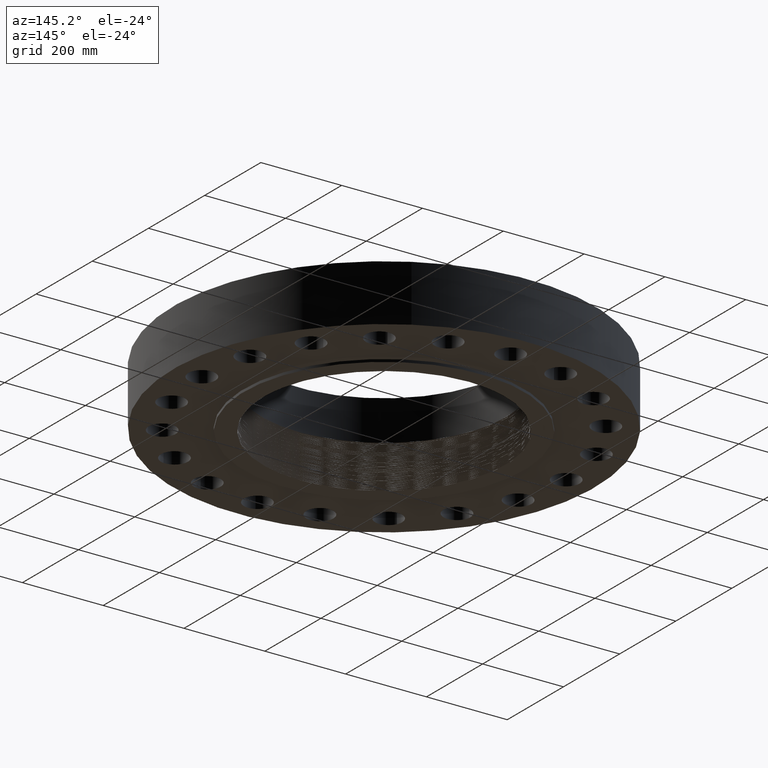
[diagram: clean part render]
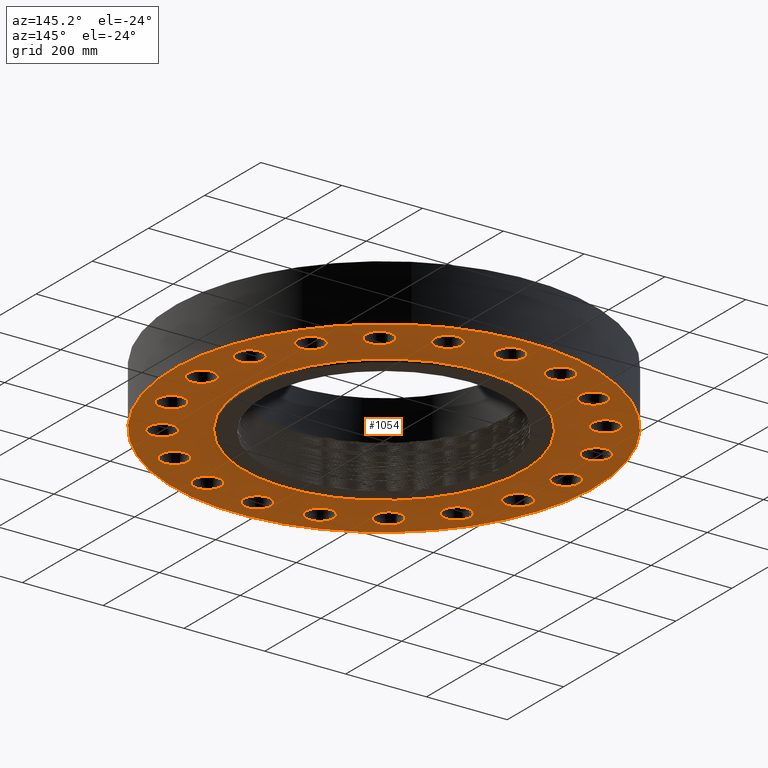
[diagram: same view with one face highlighted and labeled with its STEP entity id]
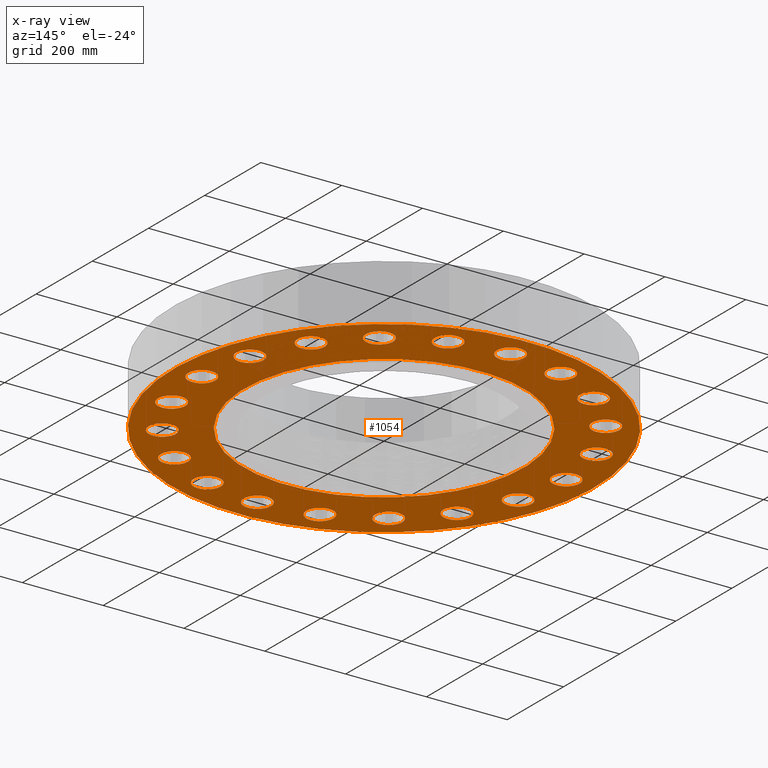
[diagram: x-ray of the same camera — body ghosted, the highlighted face saturated]
A machine part, auxiliary view. The second image highlights one B-rep face of the part: STEP entity #1054.
The next image is the same camera in x-ray: the body ghosted, the highlighted face saturated — about 0% of this face is hidden behind the body in this view.
In plain terms, the highlighted planar face has unit normal (0, 0, -1).
Its self-contained STEP definition (entity closure, byte-faithful):
#411=AXIS2_PLACEMENT_3D('Circle Axis2P3D',#409,#410,$) ;
#437=AXIS2_PLACEMENT_3D('Circle Axis2P3D',#435,#436,$) ;
#459=AXIS2_PLACEMENT_3D('Circle Axis2P3D',#457,#458,$) ;
#494=AXIS2_PLACEMENT_3D('Circle Axis2P3D',#492,#493,$) ;
#666=AXIS2_PLACEMENT_3D('Circle Axis2P3D',#664,#665,$) ;
#685=AXIS2_PLACEMENT_3D('Circle Axis2P3D',#683,#684,$) ;
#698=AXIS2_PLACEMENT_3D('Plane Axis2P3D',#695,#696,#697) ;
#714=AXIS2_PLACEMENT_3D('Circle Axis2P3D',#712,#713,$) ;
#723=AXIS2_PLACEMENT_3D('Circle Axis2P3D',#721,#722,$) ;
#732=AXIS2_PLACEMENT_3D('Circle Axis2P3D',#730,#731,$) ;
#741=AXIS2_PLACEMENT_3D('Circle Axis2P3D',#739,#740,$) ;
#750=AXIS2_PLACEMENT_3D('Circle Axis2P3D',#748,#749,$) ;
#759=AXIS2_PLACEMENT_3D('Circle Axis2P3D',#757,#758,$) ;
#768=AXIS2_PLACEMENT_3D('Circle Axis2P3D',#766,#767,$) ;
#777=AXIS2_PLACEMENT_3D('Circle Axis2P3D',#775,#776,$) ;
#786=AXIS2_PLACEMENT_3D('Circle Axis2P3D',#784,#785,$) ;
#795=AXIS2_PLACEMENT_3D('Circle Axis2P3D',#793,#794,$) ;
#804=AXIS2_PLACEMENT_3D('Circle Axis2P3D',#802,#803,$) ;
#813=AXIS2_PLACEMENT_3D('Circle Axis2P3D',#811,#812,$) ;
#822=AXIS2_PLACEMENT_3D('Circle Axis2P3D',#820,#821,$) ;
#831=AXIS2_PLACEMENT_3D('Circle Axis2P3D',#829,#830,$) ;
#840=AXIS2_PLACEMENT_3D('Circle Axis2P3D',#838,#839,$) ;
#849=AXIS2_PLACEMENT_3D('Circle Axis2P3D',#847,#848,$) ;
#858=AXIS2_PLACEMENT_3D('Circle Axis2P3D',#856,#857,$) ;
#867=AXIS2_PLACEMENT_3D('Circle Axis2P3D',#865,#866,$) ;
#876=AXIS2_PLACEMENT_3D('Circle Axis2P3D',#874,#875,$) ;
#885=AXIS2_PLACEMENT_3D('Circle Axis2P3D',#883,#884,$) ;
#894=AXIS2_PLACEMENT_3D('Circle Axis2P3D',#892,#893,$) ;
#903=AXIS2_PLACEMENT_3D('Circle Axis2P3D',#901,#902,$) ;
#912=AXIS2_PLACEMENT_3D('Circle Axis2P3D',#910,#911,$) ;
#921=AXIS2_PLACEMENT_3D('Circle Axis2P3D',#919,#920,$) ;
#930=AXIS2_PLACEMENT_3D('Circle Axis2P3D',#928,#929,$) ;
#939=AXIS2_PLACEMENT_3D('Circle Axis2P3D',#937,#938,$) ;
#948=AXIS2_PLACEMENT_3D('Circle Axis2P3D',#946,#947,$) ;
#957=AXIS2_PLACEMENT_3D('Circle Axis2P3D',#955,#956,$) ;
#966=AXIS2_PLACEMENT_3D('Circle Axis2P3D',#964,#965,$) ;
#975=AXIS2_PLACEMENT_3D('Circle Axis2P3D',#973,#974,$) ;
#984=AXIS2_PLACEMENT_3D('Circle Axis2P3D',#982,#983,$) ;
#993=AXIS2_PLACEMENT_3D('Circle Axis2P3D',#991,#992,$) ;
#1002=AXIS2_PLACEMENT_3D('Circle Axis2P3D',#1000,#1001,$) ;
#1011=AXIS2_PLACEMENT_3D('Circle Axis2P3D',#1009,#1010,$) ;
#1020=AXIS2_PLACEMENT_3D('Circle Axis2P3D',#1018,#1019,$) ;
#1029=AXIS2_PLACEMENT_3D('Circle Axis2P3D',#1027,#1028,$) ;
#1038=AXIS2_PLACEMENT_3D('Circle Axis2P3D',#1036,#1037,$) ;
#1047=AXIS2_PLACEMENT_3D('Circle Axis2P3D',#1045,#1046,$) ;
#404=CARTESIAN_POINT('Vertex',(16.5959789312,0.630444583267,0.)) ;
#409=CARTESIAN_POINT('Axis2P3D Location',(17.7500000001,0.,0.)) ;
#413=CARTESIAN_POINT('Vertex',(18.904021069,-0.630444583267,0.)) ;
#435=CARTESIAN_POINT('Axis2P3D Location',(17.7500000001,0.,0.)) ;
#457=CARTESIAN_POINT('Axis2P3D Location',(0.,0.,2.23792987641E-015)) ;
#461=CARTESIAN_POINT('Vertex',(-9.82822354143,-17.9904425188,2.23792987641E-015)) ;
#463=CARTESIAN_POINT('Vertex',(9.82822354143,17.9904425188,2.23792987641E-015)) ;
#492=CARTESIAN_POINT('Axis2P3D Location',(0.,0.,2.23792987641E-015)) ;
#661=CARTESIAN_POINT('Vertex',(-6.53217296351,-11.9570624058,1.1189649382E-015)) ;
#664=CARTESIAN_POINT('Axis2P3D Location',(0.,0.,1.67844740731E-015)) ;
#668=CARTESIAN_POINT('Vertex',(6.53217296351,11.9570624058,1.1189649382E-015)) ;
#683=CARTESIAN_POINT('Axis2P3D Location',(0.,0.,1.67844740731E-015)) ;
#695=CARTESIAN_POINT('Axis2P3D Location',(0.,13.6250000001,0.)) ;
#712=CARTESIAN_POINT('Axis2P3D Location',(16.8812531643,-5.48505165018,0.)) ;
#716=CARTESIAN_POINT('Vertex',(15.978531997,-4.52885109894,0.)) ;
#718=CARTESIAN_POINT('Vertex',(17.7839743316,-6.44125220141,0.)) ;
#721=CARTESIAN_POINT('Axis2P3D Location',(16.8812531643,-5.48505165018,0.)) ;
#730=CARTESIAN_POINT('Axis2P3D Location',(14.3600516502,-10.4331882282,0.)) ;
#734=CARTESIAN_POINT('Vertex',(13.796995022,-9.24483128123,0.)) ;
#736=CARTESIAN_POINT('Vertex',(14.9231082784,-11.6215451752,-4.47585975282E-015)) ;
#739=CARTESIAN_POINT('Axis2P3D Location',(14.3600516502,-10.4331882282,0.)) ;
#748=CARTESIAN_POINT('Axis2P3D Location',(10.4331882282,-14.3600516502,0.)) ;
#752=CARTESIAN_POINT('Vertex',(10.264912045,-13.0558629652,0.)) ;
#754=CARTESIAN_POINT('Vertex',(10.6014644115,-15.6642403352,0.)) ;
#757=CARTESIAN_POINT('Axis2P3D Location',(10.4331882282,-14.3600516502,0.)) ;
#766=CARTESIAN_POINT('Axis2P3D Location',(5.48505165018,-16.8812531643,0.)) ;
#770=CARTESIAN_POINT('Vertex',(5.7280279571,-15.5888958166,0.)) ;
#772=CARTESIAN_POINT('Vertex',(5.24207534325,-18.1736105121,0.)) ;
#775=CARTESIAN_POINT('Axis2P3D Location',(5.48505165018,-16.8812531643,0.)) ;
#784=CARTESIAN_POINT('Axis2P3D Location',(3.91637728372E-015,-17.7500000001,0.)) ;
#788=CARTESIAN_POINT('Vertex',(0.630444583267,-16.5959789312,0.)) ;
#790=CARTESIAN_POINT('Vertex',(-0.630444583267,-18.904021069,0.)) ;
#793=CARTESIAN_POINT('Axis2P3D Location',(9.79094320929E-016,-17.7500000001,0.)) ;
#802=CARTESIAN_POINT('Axis2P3D Location',(-5.48505165018,-16.8812531643,0.)) ;
#806=CARTESIAN_POINT('Vertex',(-4.52885109894,-15.978531997,0.)) ;
#808=CARTESIAN_POINT('Vertex',(-6.44125220141,-17.7839743316,0.)) ;
#811=CARTESIAN_POINT('Axis2P3D Location',(-5.48505165018,-16.8812531643,0.)) ;
#820=CARTESIAN_POINT('Axis2P3D Location',(-10.4331882282,-14.3600516502,0.)) ;
#824=CARTESIAN_POINT('Vertex',(-9.24483128123,-13.796995022,0.)) ;
#826=CARTESIAN_POINT('Vertex',(-11.6215451752,-14.9231082784,0.)) ;
#829=CARTESIAN_POINT('Axis2P3D Location',(-10.4331882282,-14.3600516502,0.)) ;
#838=CARTESIAN_POINT('Axis2P3D Location',(-14.3600516502,-10.4331882282,0.)) ;
#842=CARTESIAN_POINT('Vertex',(-13.0558629652,-10.264912045,0.)) ;
#844=CARTESIAN_POINT('Vertex',(-15.6642403352,-10.6014644115,0.)) ;
#847=CARTESIAN_POINT('Axis2P3D Location',(-14.3600516502,-10.4331882282,0.)) ;
#856=CARTESIAN_POINT('Axis2P3D Location',(-16.8812531643,-5.48505165018,0.)) ;
#860=CARTESIAN_POINT('Vertex',(-15.5888958166,-5.7280279571,0.)) ;
#862=CARTESIAN_POINT('Vertex',(-18.1736105121,-5.24207534325,0.)) ;
#865=CARTESIAN_POINT('Axis2P3D Location',(-16.8812531643,-5.48505165018,0.)) ;
#874=CARTESIAN_POINT('Axis2P3D Location',(-17.7500000001,-1.1189649382E-014,0.)) ;
#878=CARTESIAN_POINT('Vertex',(-16.5959789312,-0.630444583267,0.)) ;
#880=CARTESIAN_POINT('Vertex',(-18.904021069,0.630444583267,0.)) ;
#883=CARTESIAN_POINT('Axis2P3D Location',(-17.7500000001,-8.95171950564E-015,0.)) ;
#892=CARTESIAN_POINT('Axis2P3D Location',(-16.8812531643,5.48505165018,0.)) ;
#896=CARTESIAN_POINT('Vertex',(-15.978531997,4.52885109894,0.)) ;
#898=CARTESIAN_POINT('Vertex',(-17.7839743316,6.44125220141,0.)) ;
#901=CARTESIAN_POINT('Axis2P3D Location',(-16.8812531643,5.48505165018,0.)) ;
#910=CARTESIAN_POINT('Axis2P3D Location',(-14.3600516502,10.4331882282,0.)) ;
#914=CARTESIAN_POINT('Vertex',(-13.796995022,9.24483128123,0.)) ;
#916=CARTESIAN_POINT('Vertex',(-14.9231082784,11.6215451752,-4.47585975282E-015)) ;
#919=CARTESIAN_POINT('Axis2P3D Location',(-14.3600516502,10.4331882282,0.)) ;
#928=CARTESIAN_POINT('Axis2P3D Location',(-10.4331882282,14.3600516502,0.)) ;
#932=CARTESIAN_POINT('Vertex',(-10.264912045,13.0558629652,0.)) ;
#934=CARTESIAN_POINT('Vertex',(-10.6014644115,15.6642403352,0.)) ;
#937=CARTESIAN_POINT('Axis2P3D Location',(-10.4331882282,14.3600516502,0.)) ;
#946=CARTESIAN_POINT('Axis2P3D Location',(-5.48505165018,16.8812531643,0.)) ;
#950=CARTESIAN_POINT('Vertex',(-5.7280279571,15.5888958166,0.)) ;
#952=CARTESIAN_POINT('Vertex',(-5.24207534325,18.1736105121,-4.47585975282E-015)) ;
#955=CARTESIAN_POINT('Axis2P3D Location',(-5.48505165018,16.8812531643,0.)) ;
#964=CARTESIAN_POINT('Axis2P3D Location',(-1.65047328385E-014,17.7500000001,0.)) ;
#968=CARTESIAN_POINT('Vertex',(-0.630444583267,16.5959789312,0.)) ;
#970=CARTESIAN_POINT('Vertex',(0.630444583267,18.904021069,0.)) ;
#973=CARTESIAN_POINT('Axis2P3D Location',(-1.66446034558E-014,17.7500000001,0.)) ;
#982=CARTESIAN_POINT('Axis2P3D Location',(5.48505165018,16.8812531643,0.)) ;
#986=CARTESIAN_POINT('Vertex',(4.52885109894,15.978531997,0.)) ;
#988=CARTESIAN_POINT('Vertex',(6.44125220141,17.7839743316,-4.47585975282E-015)) ;
#991=CARTESIAN_POINT('Axis2P3D Location',(5.48505165018,16.8812531643,0.)) ;
#1000=CARTESIAN_POINT('Axis2P3D Location',(10.4331882282,14.3600516502,0.)) ;
#1004=CARTESIAN_POINT('Vertex',(9.24483128123,13.796995022,0.)) ;
#1006=CARTESIAN_POINT('Vertex',(11.6215451752,14.9231082784,0.)) ;
#1009=CARTESIAN_POINT('Axis2P3D Location',(10.4331882282,14.3600516502,0.)) ;
#1018=CARTESIAN_POINT('Axis2P3D Location',(14.3600516502,10.4331882282,0.)) ;
#1022=CARTESIAN_POINT('Vertex',(13.0558629652,10.264912045,0.)) ;
#1024=CARTESIAN_POINT('Vertex',(15.6642403352,10.6014644115,0.)) ;
#1027=CARTESIAN_POINT('Axis2P3D Location',(14.3600516502,10.4331882282,0.)) ;
#1036=CARTESIAN_POINT('Axis2P3D Location',(16.8812531643,5.48505165018,0.)) ;
#1040=CARTESIAN_POINT('Vertex',(15.5888958166,5.7280279571,0.)) ;
#1042=CARTESIAN_POINT('Vertex',(18.1736105121,5.24207534325,-4.47585975282E-015)) ;
#1045=CARTESIAN_POINT('Axis2P3D Location',(16.8812531643,5.48505165018,0.)) ;
#410=DIRECTION('Axis2P3D Direction',(0.,-0.,-0.0393700787402)) ;
#436=DIRECTION('Axis2P3D Direction',(0.,-0.,-0.0393700787402)) ;
#458=DIRECTION('Axis2P3D Direction',(0.,0.,-0.0393700787402)) ;
#493=DIRECTION('Axis2P3D Direction',(0.,0.,-0.0393700787402)) ;
#665=DIRECTION('Axis2P3D Direction',(0.,0.,-0.0393700787402)) ;
#684=DIRECTION('Axis2P3D Direction',(0.,0.,-0.0393700787402)) ;
#696=DIRECTION('Axis2P3D Direction',(0.,0.,-0.0393700787402)) ;
#697=DIRECTION('Axis2P3D XDirection',(0.0393700787402,0.,0.)) ;
#713=DIRECTION('Axis2P3D Direction',(0.,0.,-0.0393700787402)) ;
#722=DIRECTION('Axis2P3D Direction',(0.,0.,-0.0393700787402)) ;
#731=DIRECTION('Axis2P3D Direction',(0.,0.,-0.0393700787402)) ;
#740=DIRECTION('Axis2P3D Direction',(0.,0.,-0.0393700787402)) ;
#749=DIRECTION('Axis2P3D Direction',(0.,0.,-0.0393700787402)) ;
#758=DIRECTION('Axis2P3D Direction',(0.,0.,-0.0393700787402)) ;
#767=DIRECTION('Axis2P3D Direction',(0.,0.,-0.0393700787402)) ;
#776=DIRECTION('Axis2P3D Direction',(0.,0.,-0.0393700787402)) ;
#785=DIRECTION('Axis2P3D Direction',(0.,0.,-0.0393700787402)) ;
#794=DIRECTION('Axis2P3D Direction',(0.,0.,-0.0393700787402)) ;
#803=DIRECTION('Axis2P3D Direction',(0.,0.,-0.0393700787402)) ;
#812=DIRECTION('Axis2P3D Direction',(0.,0.,-0.0393700787402)) ;
#821=DIRECTION('Axis2P3D Direction',(0.,0.,-0.0393700787402)) ;
#830=DIRECTION('Axis2P3D Direction',(0.,0.,-0.0393700787402)) ;
#839=DIRECTION('Axis2P3D Direction',(0.,0.,-0.0393700787402)) ;
#848=DIRECTION('Axis2P3D Direction',(0.,0.,-0.0393700787402)) ;
#857=DIRECTION('Axis2P3D Direction',(0.,0.,-0.0393700787402)) ;
#866=DIRECTION('Axis2P3D Direction',(0.,0.,-0.0393700787402)) ;
#875=DIRECTION('Axis2P3D Direction',(0.,0.,-0.0393700787402)) ;
#884=DIRECTION('Axis2P3D Direction',(0.,0.,-0.0393700787402)) ;
#893=DIRECTION('Axis2P3D Direction',(0.,0.,-0.0393700787402)) ;
#902=DIRECTION('Axis2P3D Direction',(0.,0.,-0.0393700787402)) ;
#911=DIRECTION('Axis2P3D Direction',(0.,0.,-0.0393700787402)) ;
#920=DIRECTION('Axis2P3D Direction',(0.,0.,-0.0393700787402)) ;
#929=DIRECTION('Axis2P3D Direction',(0.,0.,-0.0393700787402)) ;
#938=DIRECTION('Axis2P3D Direction',(0.,0.,-0.0393700787402)) ;
#947=DIRECTION('Axis2P3D Direction',(0.,0.,-0.0393700787402)) ;
#956=DIRECTION('Axis2P3D Direction',(0.,0.,-0.0393700787402)) ;
#965=DIRECTION('Axis2P3D Direction',(0.,0.,-0.0393700787402)) ;
#974=DIRECTION('Axis2P3D Direction',(0.,0.,-0.0393700787402)) ;
#983=DIRECTION('Axis2P3D Direction',(0.,0.,-0.0393700787402)) ;
#992=DIRECTION('Axis2P3D Direction',(0.,0.,-0.0393700787402)) ;
#1001=DIRECTION('Axis2P3D Direction',(0.,0.,-0.0393700787402)) ;
#1010=DIRECTION('Axis2P3D Direction',(0.,0.,-0.0393700787402)) ;
#1019=DIRECTION('Axis2P3D Direction',(0.,0.,-0.0393700787402)) ;
#1028=DIRECTION('Axis2P3D Direction',(0.,0.,-0.0393700787402)) ;
#1037=DIRECTION('Axis2P3D Direction',(0.,0.,-0.0393700787402)) ;
#1046=DIRECTION('Axis2P3D Direction',(0.,0.,-0.0393700787402)) ;
#701=ORIENTED_EDGE('',*,*,#465,.T.) ;
#702=ORIENTED_EDGE('',*,*,#496,.T.) ;
#705=ORIENTED_EDGE('',*,*,#439,.F.) ;
#706=ORIENTED_EDGE('',*,*,#415,.F.) ;
#709=ORIENTED_EDGE('',*,*,#687,.F.) ;
#710=ORIENTED_EDGE('',*,*,#670,.F.) ;
#727=ORIENTED_EDGE('',*,*,#720,.F.) ;
#728=ORIENTED_EDGE('',*,*,#725,.F.) ;
#745=ORIENTED_EDGE('',*,*,#738,.F.) ;
#746=ORIENTED_EDGE('',*,*,#743,.F.) ;
#763=ORIENTED_EDGE('',*,*,#756,.F.) ;
#764=ORIENTED_EDGE('',*,*,#761,.F.) ;
#781=ORIENTED_EDGE('',*,*,#774,.F.) ;
#782=ORIENTED_EDGE('',*,*,#779,.F.) ;
#799=ORIENTED_EDGE('',*,*,#792,.F.) ;
#800=ORIENTED_EDGE('',*,*,#797,.F.) ;
#817=ORIENTED_EDGE('',*,*,#810,.F.) ;
#818=ORIENTED_EDGE('',*,*,#815,.F.) ;
#835=ORIENTED_EDGE('',*,*,#828,.F.) ;
#836=ORIENTED_EDGE('',*,*,#833,.F.) ;
#853=ORIENTED_EDGE('',*,*,#846,.F.) ;
#854=ORIENTED_EDGE('',*,*,#851,.F.) ;
#871=ORIENTED_EDGE('',*,*,#864,.F.) ;
#872=ORIENTED_EDGE('',*,*,#869,.F.) ;
#889=ORIENTED_EDGE('',*,*,#882,.F.) ;
#890=ORIENTED_EDGE('',*,*,#887,.F.) ;
#907=ORIENTED_EDGE('',*,*,#900,.F.) ;
#908=ORIENTED_EDGE('',*,*,#905,.F.) ;
#925=ORIENTED_EDGE('',*,*,#918,.F.) ;
#926=ORIENTED_EDGE('',*,*,#923,.F.) ;
#943=ORIENTED_EDGE('',*,*,#936,.F.) ;
#944=ORIENTED_EDGE('',*,*,#941,.F.) ;
#961=ORIENTED_EDGE('',*,*,#954,.F.) ;
#962=ORIENTED_EDGE('',*,*,#959,.F.) ;
#979=ORIENTED_EDGE('',*,*,#972,.F.) ;
#980=ORIENTED_EDGE('',*,*,#977,.F.) ;
#997=ORIENTED_EDGE('',*,*,#990,.F.) ;
#998=ORIENTED_EDGE('',*,*,#995,.F.) ;
#1015=ORIENTED_EDGE('',*,*,#1008,.F.) ;
#1016=ORIENTED_EDGE('',*,*,#1013,.F.) ;
#1033=ORIENTED_EDGE('',*,*,#1026,.F.) ;
#1034=ORIENTED_EDGE('',*,*,#1031,.F.) ;
#1051=ORIENTED_EDGE('',*,*,#1044,.F.) ;
#1052=ORIENTED_EDGE('',*,*,#1049,.F.) ;
#707=FACE_BOUND('',#704,.T.) ;
#711=FACE_BOUND('',#708,.T.) ;
#729=FACE_BOUND('',#726,.T.) ;
#747=FACE_BOUND('',#744,.T.) ;
#765=FACE_BOUND('',#762,.T.) ;
#783=FACE_BOUND('',#780,.T.) ;
#801=FACE_BOUND('',#798,.T.) ;
#819=FACE_BOUND('',#816,.T.) ;
#837=FACE_BOUND('',#834,.T.) ;
#855=FACE_BOUND('',#852,.T.) ;
#873=FACE_BOUND('',#870,.T.) ;
#891=FACE_BOUND('',#888,.T.) ;
#909=FACE_BOUND('',#906,.T.) ;
#927=FACE_BOUND('',#924,.T.) ;
#945=FACE_BOUND('',#942,.T.) ;
#963=FACE_BOUND('',#960,.T.) ;
#981=FACE_BOUND('',#978,.T.) ;
#999=FACE_BOUND('',#996,.T.) ;
#1017=FACE_BOUND('',#1014,.T.) ;
#1035=FACE_BOUND('',#1032,.T.) ;
#1053=FACE_BOUND('',#1050,.T.) ;
#1054=ADVANCED_FACE('PartBody',(#703,#707,#711,#729,#747,#765,#783,#801,#819,#837,#855,#873,#891,#909,#927,#945,#963,#981,#999,#1017,#1035,#1053),#699,.T.) ;
#412=CIRCLE('generated circle',#411,1.31500000001) ;
#438=CIRCLE('generated circle',#437,1.31500000001) ;
#460=CIRCLE('generated circle',#459,20.5000000001) ;
#495=CIRCLE('generated circle',#494,20.5000000001) ;
#667=CIRCLE('generated circle',#666,13.6250000001) ;
#686=CIRCLE('generated circle',#685,13.6250000001) ;
#715=CIRCLE('generated circle',#714,1.31500000001) ;
#724=CIRCLE('generated circle',#723,1.31500000001) ;
#733=CIRCLE('generated circle',#732,1.31500000001) ;
#742=CIRCLE('generated circle',#741,1.31500000001) ;
#751=CIRCLE('generated circle',#750,1.31500000001) ;
#760=CIRCLE('generated circle',#759,1.31500000001) ;
#769=CIRCLE('generated circle',#768,1.31500000001) ;
#778=CIRCLE('generated circle',#777,1.31500000001) ;
#787=CIRCLE('generated circle',#786,1.31500000001) ;
#796=CIRCLE('generated circle',#795,1.31500000001) ;
#805=CIRCLE('generated circle',#804,1.31500000001) ;
#814=CIRCLE('generated circle',#813,1.31500000001) ;
#823=CIRCLE('generated circle',#822,1.31500000001) ;
#832=CIRCLE('generated circle',#831,1.31500000001) ;
#841=CIRCLE('generated circle',#840,1.31500000001) ;
#850=CIRCLE('generated circle',#849,1.31500000001) ;
#859=CIRCLE('generated circle',#858,1.31500000001) ;
#868=CIRCLE('generated circle',#867,1.31500000001) ;
#877=CIRCLE('generated circle',#876,1.31500000001) ;
#886=CIRCLE('generated circle',#885,1.31500000001) ;
#895=CIRCLE('generated circle',#894,1.31500000001) ;
#904=CIRCLE('generated circle',#903,1.31500000001) ;
#913=CIRCLE('generated circle',#912,1.31500000001) ;
#922=CIRCLE('generated circle',#921,1.31500000001) ;
#931=CIRCLE('generated circle',#930,1.31500000001) ;
#940=CIRCLE('generated circle',#939,1.31500000001) ;
#949=CIRCLE('generated circle',#948,1.31500000001) ;
#958=CIRCLE('generated circle',#957,1.31500000001) ;
#967=CIRCLE('generated circle',#966,1.31500000001) ;
#976=CIRCLE('generated circle',#975,1.31500000001) ;
#985=CIRCLE('generated circle',#984,1.31500000001) ;
#994=CIRCLE('generated circle',#993,1.31500000001) ;
#1003=CIRCLE('generated circle',#1002,1.31500000001) ;
#1012=CIRCLE('generated circle',#1011,1.31500000001) ;
#1021=CIRCLE('generated circle',#1020,1.31500000001) ;
#1030=CIRCLE('generated circle',#1029,1.31500000001) ;
#1039=CIRCLE('generated circle',#1038,1.31500000001) ;
#1048=CIRCLE('generated circle',#1047,1.31500000001) ;
#415=EDGE_CURVE('',#405,#414,#412,.T.) ;
#439=EDGE_CURVE('',#414,#405,#438,.T.) ;
#465=EDGE_CURVE('',#462,#464,#460,.T.) ;
#496=EDGE_CURVE('',#464,#462,#495,.T.) ;
#670=EDGE_CURVE('',#662,#669,#667,.T.) ;
#687=EDGE_CURVE('',#669,#662,#686,.T.) ;
#720=EDGE_CURVE('',#717,#719,#715,.T.) ;
#725=EDGE_CURVE('',#719,#717,#724,.T.) ;
#738=EDGE_CURVE('',#735,#737,#733,.T.) ;
#743=EDGE_CURVE('',#737,#735,#742,.T.) ;
#756=EDGE_CURVE('',#753,#755,#751,.T.) ;
#761=EDGE_CURVE('',#755,#753,#760,.T.) ;
#774=EDGE_CURVE('',#771,#773,#769,.T.) ;
#779=EDGE_CURVE('',#773,#771,#778,.T.) ;
#792=EDGE_CURVE('',#789,#791,#787,.T.) ;
#797=EDGE_CURVE('',#791,#789,#796,.T.) ;
#810=EDGE_CURVE('',#807,#809,#805,.T.) ;
#815=EDGE_CURVE('',#809,#807,#814,.T.) ;
#828=EDGE_CURVE('',#825,#827,#823,.T.) ;
#833=EDGE_CURVE('',#827,#825,#832,.T.) ;
#846=EDGE_CURVE('',#843,#845,#841,.T.) ;
#851=EDGE_CURVE('',#845,#843,#850,.T.) ;
#864=EDGE_CURVE('',#861,#863,#859,.T.) ;
#869=EDGE_CURVE('',#863,#861,#868,.T.) ;
#882=EDGE_CURVE('',#879,#881,#877,.T.) ;
#887=EDGE_CURVE('',#881,#879,#886,.T.) ;
#900=EDGE_CURVE('',#897,#899,#895,.T.) ;
#905=EDGE_CURVE('',#899,#897,#904,.T.) ;
#918=EDGE_CURVE('',#915,#917,#913,.T.) ;
#923=EDGE_CURVE('',#917,#915,#922,.T.) ;
#936=EDGE_CURVE('',#933,#935,#931,.T.) ;
#941=EDGE_CURVE('',#935,#933,#940,.T.) ;
#954=EDGE_CURVE('',#951,#953,#949,.T.) ;
#959=EDGE_CURVE('',#953,#951,#958,.T.) ;
#972=EDGE_CURVE('',#969,#971,#967,.T.) ;
#977=EDGE_CURVE('',#971,#969,#976,.T.) ;
#990=EDGE_CURVE('',#987,#989,#985,.T.) ;
#995=EDGE_CURVE('',#989,#987,#994,.T.) ;
#1008=EDGE_CURVE('',#1005,#1007,#1003,.T.) ;
#1013=EDGE_CURVE('',#1007,#1005,#1012,.T.) ;
#1026=EDGE_CURVE('',#1023,#1025,#1021,.T.) ;
#1031=EDGE_CURVE('',#1025,#1023,#1030,.T.) ;
#1044=EDGE_CURVE('',#1041,#1043,#1039,.T.) ;
#1049=EDGE_CURVE('',#1043,#1041,#1048,.T.) ;
#700=EDGE_LOOP('',(#701,#702)) ;
#704=EDGE_LOOP('',(#705,#706)) ;
#708=EDGE_LOOP('',(#709,#710)) ;
#726=EDGE_LOOP('',(#727,#728)) ;
#744=EDGE_LOOP('',(#745,#746)) ;
#762=EDGE_LOOP('',(#763,#764)) ;
#780=EDGE_LOOP('',(#781,#782)) ;
#798=EDGE_LOOP('',(#799,#800)) ;
#816=EDGE_LOOP('',(#817,#818)) ;
#834=EDGE_LOOP('',(#835,#836)) ;
#852=EDGE_LOOP('',(#853,#854)) ;
#870=EDGE_LOOP('',(#871,#872)) ;
#888=EDGE_LOOP('',(#889,#890)) ;
#906=EDGE_LOOP('',(#907,#908)) ;
#924=EDGE_LOOP('',(#925,#926)) ;
#942=EDGE_LOOP('',(#943,#944)) ;
#960=EDGE_LOOP('',(#961,#962)) ;
#978=EDGE_LOOP('',(#979,#980)) ;
#996=EDGE_LOOP('',(#997,#998)) ;
#1014=EDGE_LOOP('',(#1015,#1016)) ;
#1032=EDGE_LOOP('',(#1033,#1034)) ;
#1050=EDGE_LOOP('',(#1051,#1052)) ;
#703=FACE_OUTER_BOUND('',#700,.T.) ;
#699=PLANE('',#698) ;
#405=VERTEX_POINT('',#404) ;
#414=VERTEX_POINT('',#413) ;
#462=VERTEX_POINT('',#461) ;
#464=VERTEX_POINT('',#463) ;
#662=VERTEX_POINT('',#661) ;
#669=VERTEX_POINT('',#668) ;
#717=VERTEX_POINT('',#716) ;
#719=VERTEX_POINT('',#718) ;
#735=VERTEX_POINT('',#734) ;
#737=VERTEX_POINT('',#736) ;
#753=VERTEX_POINT('',#752) ;
#755=VERTEX_POINT('',#754) ;
#771=VERTEX_POINT('',#770) ;
#773=VERTEX_POINT('',#772) ;
#789=VERTEX_POINT('',#788) ;
#791=VERTEX_POINT('',#790) ;
#807=VERTEX_POINT('',#806) ;
#809=VERTEX_POINT('',#808) ;
#825=VERTEX_POINT('',#824) ;
#827=VERTEX_POINT('',#826) ;
#843=VERTEX_POINT('',#842) ;
#845=VERTEX_POINT('',#844) ;
#861=VERTEX_POINT('',#860) ;
#863=VERTEX_POINT('',#862) ;
#879=VERTEX_POINT('',#878) ;
#881=VERTEX_POINT('',#880) ;
#897=VERTEX_POINT('',#896) ;
#899=VERTEX_POINT('',#898) ;
#915=VERTEX_POINT('',#914) ;
#917=VERTEX_POINT('',#916) ;
#933=VERTEX_POINT('',#932) ;
#935=VERTEX_POINT('',#934) ;
#951=VERTEX_POINT('',#950) ;
#953=VERTEX_POINT('',#952) ;
#969=VERTEX_POINT('',#968) ;
#971=VERTEX_POINT('',#970) ;
#987=VERTEX_POINT('',#986) ;
#989=VERTEX_POINT('',#988) ;
#1005=VERTEX_POINT('',#1004) ;
#1007=VERTEX_POINT('',#1006) ;
#1023=VERTEX_POINT('',#1022) ;
#1025=VERTEX_POINT('',#1024) ;
#1041=VERTEX_POINT('',#1040) ;
#1043=VERTEX_POINT('',#1042) ;